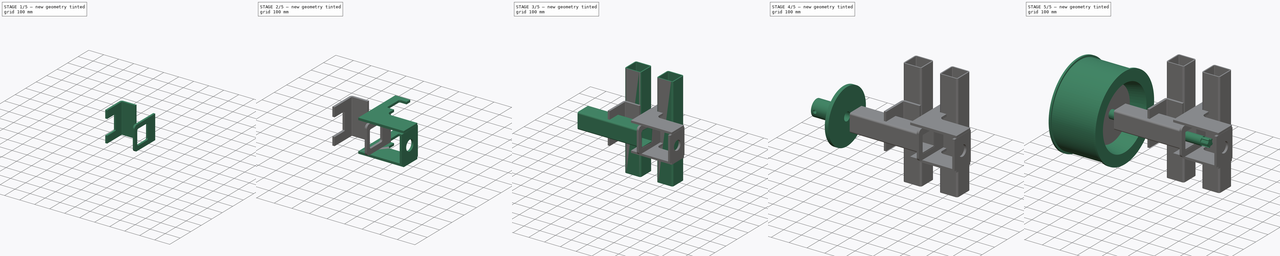
[diagram: build sequence overview — one tinted view per stage of 5, left to right]
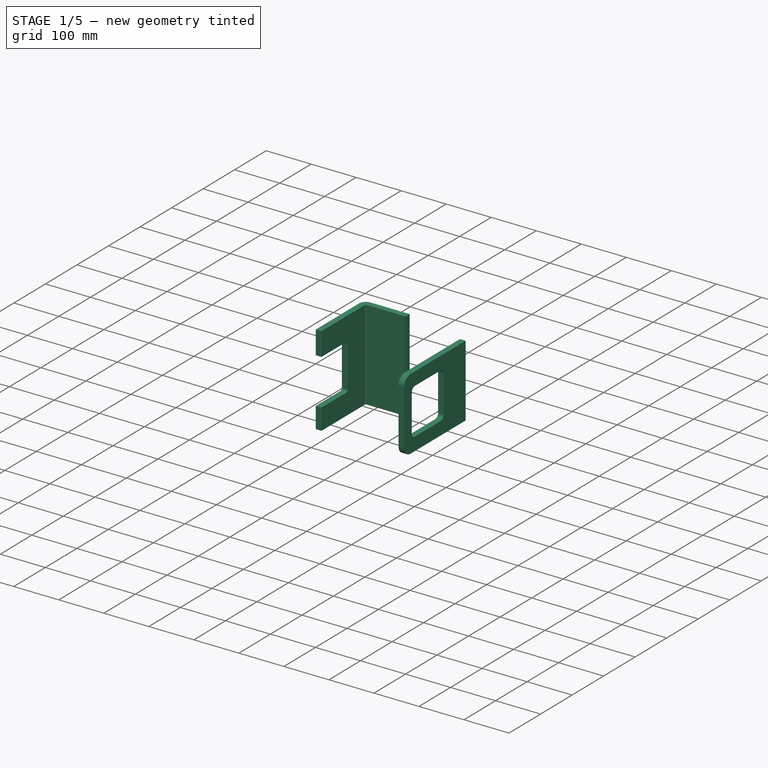
[diagram: stage 1 of 5 — iso view after this stage's code; geometry added in this stage tinted green]
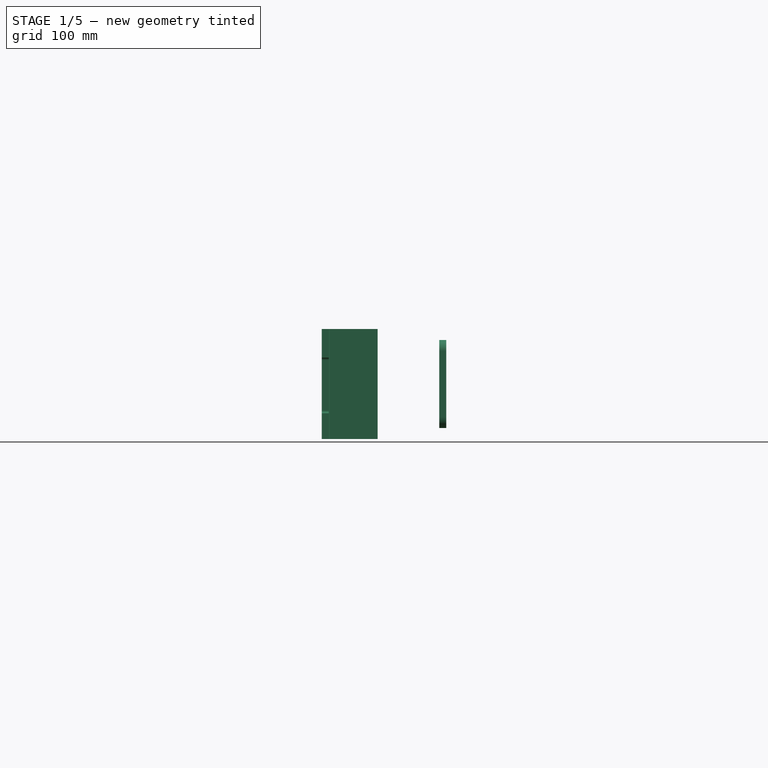
[diagram: stage 1 of 5 — front view after this stage's code; geometry added in this stage tinted green]
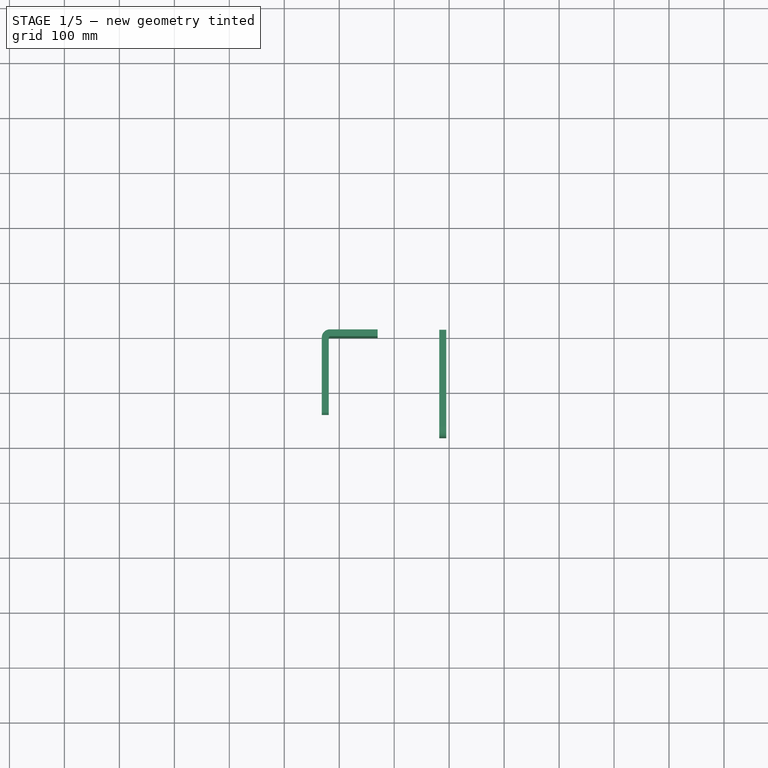
[diagram: stage 1 of 5 — top view after this stage's code; geometry added in this stage tinted green]
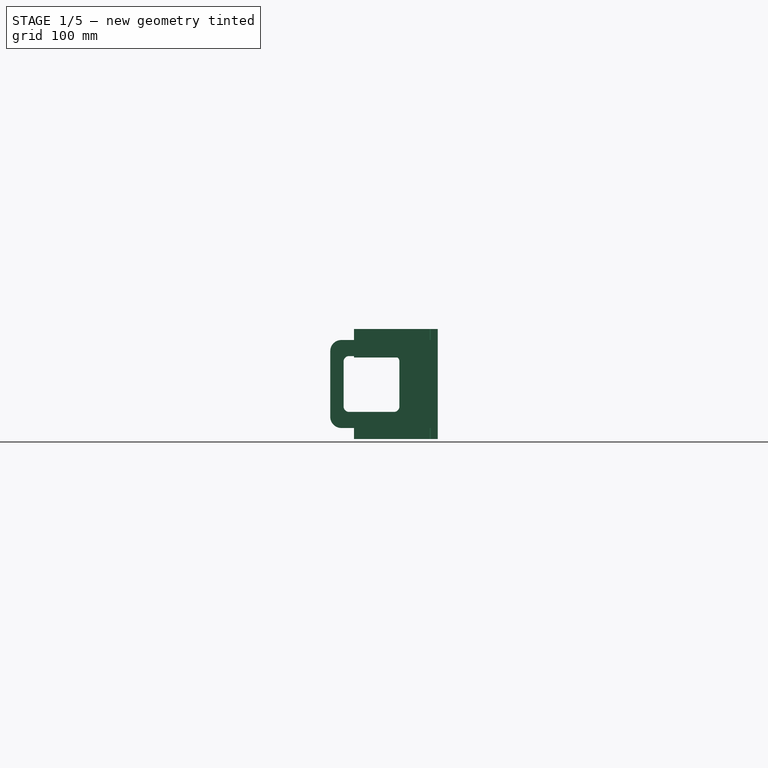
[diagram: stage 1 of 5 — right view after this stage's code; geometry added in this stage tinted green]
FCSTD DOCUMENT
Label: Wheelmodel_3
objects: Part::Feature×15, Sketcher::SketchObject×14, PartDesign::Pad×11, PartDesign::Revolution×2, Part::Cut×1, PartDesign::Pocket×1
note: 55 computed .brp shape members not serialized (recipe doc carries the construction recipe); baked Part::Feature solids carry a one-line shape summary decoded from their .brp

FEATURE [PartDesign::Pad] Pad013  label="Pad_Bracket"
  Length = 12.7
  MirroredExtent = false
  Sketch = -> Sketch009
FEATURE [Sketcher::SketchObject] Sketch013  label="Sketch_Bracket1"
  Placement = pos=(-731.8,-687,-85.94) rot=(0,0,1;0rad)
  sketch-geometry (10):
    g0: LineSegment StartX=15 StartY=0 StartZ=0 EndX=101.6 EndY=0 EndZ=0
    g1: LineSegment StartX=0 StartY=-152.4 StartZ=0 EndX=0 EndY=-15 EndZ=0
    g2: LineSegment [constr] StartX=0 StartY=0 StartZ=0 EndX=0 EndY=60 EndZ=0
    g3: LineSegment [constr] StartX=0 StartY=0 StartZ=0 EndX=60 EndY=0 EndZ=0
    g4: ArcOfCircle CenterX=15 CenterY=-15 CenterZ=0 NormalX=0 NormalY=0 NormalZ=1 Radius=15 StartAngle=1.5708 EndAngle=3.14159
    g5: LineSegment StartX=15 StartY=-12.7 StartZ=0 EndX=101.6 EndY=-12.7 EndZ=0
    g6: LineSegment StartX=12.7 StartY=-152.4 StartZ=0 EndX=12.7 EndY=-15 EndZ=0
    g7: ArcOfCircle CenterX=15 CenterY=-15 CenterZ=0 NormalX=0 NormalY=0 NormalZ=1 Radius=2.3 StartAngle=1.5708 EndAngle=3.14159
    g8: LineSegment StartX=101.6 StartY=0 StartZ=0 EndX=101.6 EndY=-12.7 EndZ=0
    g9: LineSegment StartX=0 StartY=-152.4 StartZ=0 EndX=12.7 EndY=-152.4 EndZ=0
  constraints (27):
    c: Horizontal(g0)
    c: Vertical(g2)
    c: DistanceX(g2) = 0
    c: DistanceY(g2) = 0
    c: Coincident(g3,g2)
    c: Horizontal(g3)
    c: DistanceX(g3) = 60
    c: Tangent(g0,g4)
    c: Tangent(g1,g4)
    c: Radius(g4) = 15
    c: Tangent(g5,g7)
    c: Tangent(g6,g7)
    c: Coincident(g7,g4)
    c: Vertical(g1)
    c: Coincident(g8,g0)
    c: Coincident(g8,g5)
    c: Vertical(g8)
    c: Coincident(g9,g1)
    c: Coincident(g9,g6)
    c: Horizontal(g9)
    c: Vertical(g6)
    c: DistanceX(g1) = 0
    c: Horizontal(g5)
    c: DistanceY(g0) = 0
    c: DistanceY(g1) = -152.4
    c: DistanceX(g9) = 12.7
    c: DistanceX(g0) = 101.6
FEATURE [PartDesign::Pad] Pad014  label="Pad_Bracket1"
  Length = 200
  MirroredExtent = false
  Sketch = -> Sketch013
FEATURE [Sketcher::SketchObject] Sketch014  label="Sketch_BracketCut"
  Placement = pos=(-731.8,0,0) rot=(0.57735,-0.57735,-0.57735;2.0944rad)
  Support = -> Pad014 [Face3]
  sketch-geometry (10):
    g0: LineSegment StartX=761.68 StartY=62.36 StartZ=0 EndX=853.28 EndY=62.36 EndZ=0
    g1: LineSegment StartX=858.28 StartY=57.36 StartZ=0 EndX=858.28 EndY=-34.24 EndZ=0
    g2: LineSegment StartX=853.28 StartY=-39.24 StartZ=0 EndX=761.68 EndY=-39.24 EndZ=0
    g3: LineSegment StartX=756.68 StartY=-34.24 StartZ=0 EndX=756.68 EndY=57.36 EndZ=0
    g4: LineSegment [constr] StartX=756.68 StartY=14.06 StartZ=0 EndX=858.28 EndY=14.06 EndZ=0
    g5: LineSegment [constr] StartX=807.48 StartY=62.36 StartZ=0 EndX=807.48 EndY=-39.24 EndZ=0
    g6: ArcOfCircle CenterX=761.68 CenterY=57.36 CenterZ=0 NormalX=0 NormalY=0 NormalZ=1 Radius=5 StartAngle=1.5708 EndAngle=3.14159
    g7: ArcOfCircle CenterX=853.28 CenterY=57.36 CenterZ=0 NormalX=0 NormalY=0 NormalZ=1 Radius=5 StartAngle=0 EndAngle=1.5708
    g8: ArcOfCircle CenterX=853.28 CenterY=-34.24 CenterZ=0 NormalX=0 NormalY=0 NormalZ=1 Radius=5 StartAngle=4.71239 EndAngle=6.28319
    g9: ArcOfCircle CenterX=761.68 CenterY=-34.24 CenterZ=0 NormalX=0 NormalY=0 NormalZ=1 Radius=5 StartAngle=3.14159 EndAngle=4.71239
  constraints (26):
    c: Horizontal(g2)
    c: Vertical(g1)
    c: Horizontal(g4)
    c: PointOnObject(g4,g3)
    c: PointOnObject(g4,g1)
    c: PointOnObject(g5,g0)
    c: PointOnObject(g5,g2)
    c: Vertical(g5)
    c: DistanceY(g4) = 14.06
    c: DistanceX(g5) = 807.48
    c: Tangent(g0,g6)
    c: Tangent(g3,g6)
    c: Tangent(g0,g7)
    c: Tangent(g1,g7)
    c: Tangent(g1,g8)
    c: Tangent(g2,g8)
    c: Tangent(g2,g9)
    c: Tangent(g3,g9)
    c: DistanceY(g2,g0) = 101.6
    c: Symmetric(g9,g0,g4)
    c: Vertical(g3)
    c: Horizontal(g0)
    c: Symmetric(g7,g6,g5)
    c: DistanceX(g4) = 101.6
    c: Radius(g6) = 5
    c: Equal(g8,g6)
FEATURE [PartDesign::Pocket] Pocket  label="Pocket_Bracket1"
  Length = 15
  Sketch = -> Sketch014
  Type = 0
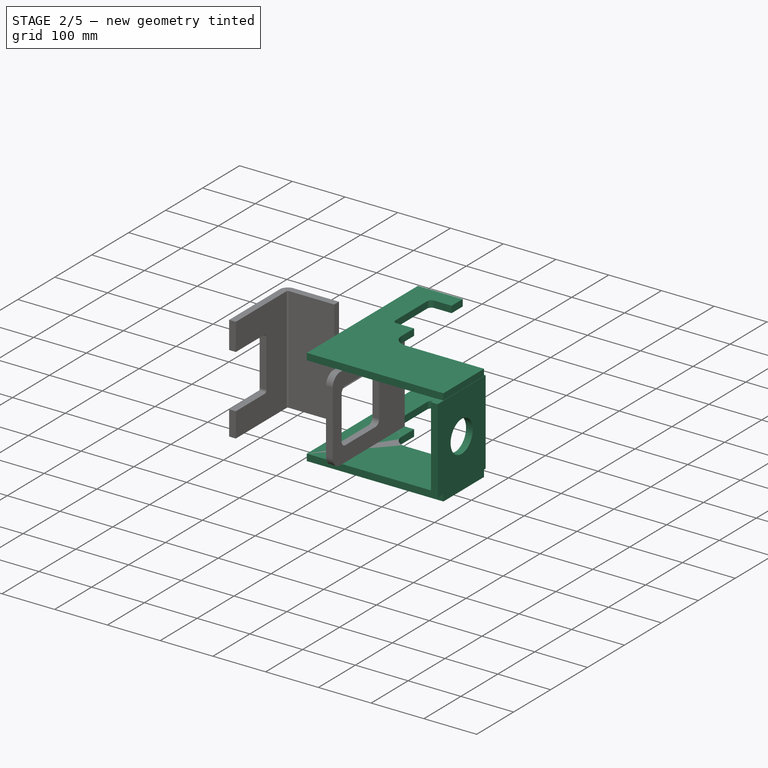
[diagram: stage 2 of 5 — iso view after this stage's code; geometry added in this stage tinted green]
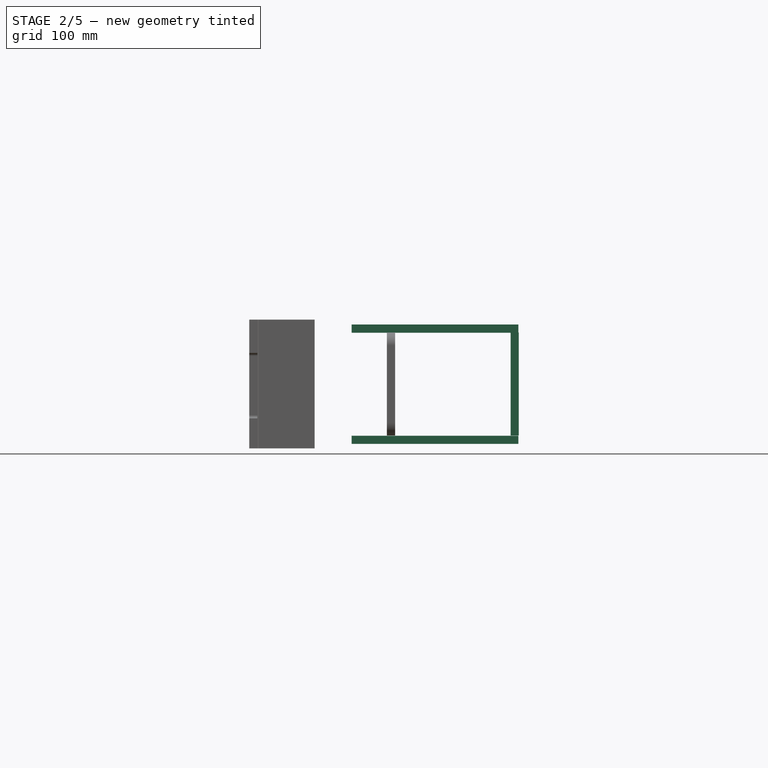
[diagram: stage 2 of 5 — front view after this stage's code; geometry added in this stage tinted green]
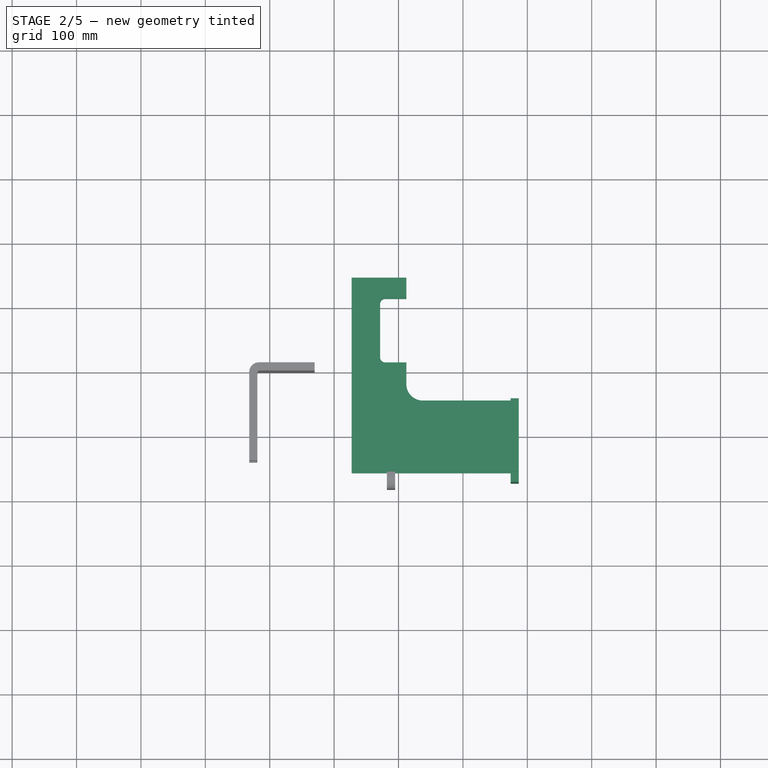
[diagram: stage 2 of 5 — top view after this stage's code; geometry added in this stage tinted green]
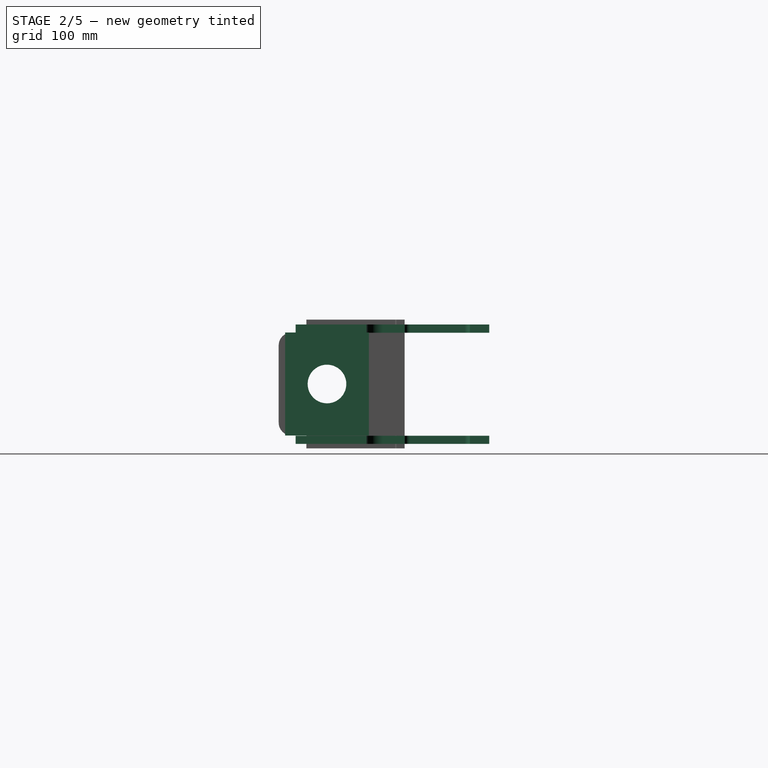
[diagram: stage 2 of 5 — right view after this stage's code; geometry added in this stage tinted green]
FEATURE [Sketcher::SketchObject] Sketch011  label="Sketch_FlangeMotor"
  Placement = pos=(-326,-807.48,14.06) rot=(0.57735,0.57735,0.57735;2.0944rad)
  sketch-geometry (7):
    g0: LineSegment [constr] StartX=0 StartY=0 StartZ=0 EndX=0 EndY=60 EndZ=0
    g1: LineSegment [constr] StartX=0 StartY=0 StartZ=0 EndX=60 EndY=0 EndZ=0
    g2: LineSegment StartX=-65 StartY=80 StartZ=0 EndX=65 EndY=80 EndZ=0
    g3: LineSegment StartX=65 StartY=80 StartZ=0 EndX=65 EndY=-80 EndZ=0
    g4: LineSegment StartX=65 StartY=-80 StartZ=0 EndX=-65 EndY=-80 EndZ=0
    g5: LineSegment StartX=-65 StartY=-80 StartZ=0 EndX=-65 EndY=80 EndZ=0
    g6: Circle CenterX=0 CenterY=0 CenterZ=0 NormalX=0 NormalY=0 NormalZ=1 Radius=30
  constraints (20):
    c: Vertical(g0)
    c: DistanceX(g0) = 0
    c: DistanceY(g0) = 0
    c: DistanceY(g0) = 60
    c: Coincident(g1,g0)
    c: Horizontal(g1)
    c: DistanceX(g1) = 60
    c: Coincident(g3,g4)
    c: Horizontal(g2)
    c: Horizontal(g4)
    c: Vertical(g3)
    c: DistanceX(g5) = -65
    c: DistanceY(g2,g4) = -160
    c: DistanceX(g3) = 65
    c: Coincident(g6,g0)
    c: Radius(g6) = 30
    c: Coincident(g5,g2)
    c: Coincident(g5,g4)
    c: Symmetric(g2,g4,g1)
    c: Coincident(g2,g3)
FEATURE [Part::Feature] ___Life_Trac_III___Wheel_connection_with_Mount018  label="BearingPlate1"
  Placement = pos=(-910,-883.681,90.2632) rot=(0.57735,0.57735,-0.57735;4.18879rad)
  shape: bbox 12.7 x 152.4 x 152.4 mm, 20 faces (baked)
FEATURE [PartDesign::Pad] Pad010  label="Pad_FlangeMotor"
  Length = 12.7
  MirroredExtent = false
  Sketch = -> Sketch011
FEATURE [Part::Feature] ___Life_Trac_III___Wheel_connection_with_Mount019  label="Motor"
  Placement = pos=(-64.8255,-756.681,64.8632) rot=(0.57735,-0.57735,0.57735;2.0944rad)
  shape: bbox 292.1 x 127 x 114.3 mm, 43 faces (baked)
FEATURE [Sketcher::SketchObject] Sketch012  label="Sketch_Hook"
  Placement = pos=(-477.8,-636.2,-79) rot=(0,0,1;0rad)
  sketch-geometry (15):
    g0: LineSegment StartX=-42.8 StartY=50.8 StartZ=0 EndX=-10 EndY=50.8 EndZ=0
    g1: LineSegment StartX=-50.8 StartY=-42.8 StartZ=0 EndX=-50.8 EndY=42.8 EndZ=0
    g2: LineSegment [constr] StartX=0 StartY=0 StartZ=0 EndX=0 EndY=60 EndZ=0
    g3: LineSegment [constr] StartX=0 StartY=0 StartZ=0 EndX=60 EndY=0 EndZ=0
    g4: ArcOfCircle CenterX=-42.8 CenterY=42.8 CenterZ=0 NormalX=0 NormalY=0 NormalZ=1 Radius=8 StartAngle=1.5708 EndAngle=3.14159
    g5: LineSegment StartX=15.4 StartY=-110 StartZ=0 EndX=164 EndY=-110 EndZ=0
    g6: LineSegment StartX=164 StartY=-110 StartZ=0 EndX=164 EndY=-220 EndZ=0
    g7: LineSegment StartX=164 StartY=-220 StartZ=0 EndX=-95 EndY=-220 EndZ=0
    g8: LineSegment StartX=-95 StartY=-220 StartZ=0 EndX=-95 EndY=80.8 EndZ=0
    g9: LineSegment StartX=-95 StartY=80.8 StartZ=0 EndX=-10 EndY=80.8 EndZ=0
    g10: LineSegment StartX=-10 StartY=80.8 StartZ=0 EndX=-10 EndY=50.8 EndZ=0
    g11: LineSegment StartX=-42.8 StartY=-50.8 StartZ=0 EndX=-10 EndY=-50.8 EndZ=0
    g12: LineSegment StartX=-10 StartY=-50.8 StartZ=0 EndX=-10 EndY=-84.6 EndZ=0
    g13: ArcOfCircle CenterX=-42.8 CenterY=-42.8 CenterZ=0 NormalX=0 NormalY=0 NormalZ=1 Radius=8 StartAngle=3.14159 EndAngle=4.71239
    g14: ArcOfCircle CenterX=15.4 CenterY=-84.6 CenterZ=0 NormalX=0 NormalY=0 NormalZ=1 Radius=25.4 StartAngle=3.14159 EndAngle=4.71239
  constraints (43):
    c: Horizontal(g0)
    c: Vertical(g2)
    c: DistanceX(g2) = 0
    c: DistanceY(g2) = 0
    c: DistanceY(g2) = 60
    c: Coincident(g3,g2)
    c: Horizontal(g3)
    c: DistanceX(g3) = 60
    c: Tangent(g0,g4)
    c: Tangent(g1,g4)
    c: Radius(g4) = 8
    c: DistanceX(g1) = -50.8
    c: Vertical(g1)
    c: DistanceX(g0) = -10
    c: DistanceY(g0) = 50.8
    c: Horizontal(g5)
    c: Coincident(g6,g5)
    c: Vertical(g6)
    c: Coincident(g6,g7)
    c: Horizontal(g7)
    c: Coincident(g7,g8)
    c: Vertical(g8)
    c: Coincident(g9,g8)
    c: Horizontal(g9)
    c: Coincident(g10,g9)
    c: Coincident(g10,g0)
    c: Vertical(g10)
    c: DistanceX(g9) = 85
    c: DistanceY(g6) = -110
    c: DistanceY(g7) = -220
    c: DistanceX(g5) = 164
    c: DistanceY(g10) = -30
    c: Horizontal(g11)
    c: Coincident(g11,g12)
    c: Vertical(g12)
    c: DistanceY(g0,g11) = -101.6
    c: Tangent(g1,g13)
    c: Tangent(g11,g13)
    c: Radius(g13) = 8
    c: DistanceX(g11,g0) = 0
    c: Tangent(g5,g14)
    c: Tangent(g12,g14)
    c: Radius(g14) = 25.4
FEATURE [PartDesign::Pad] Pad011  label="Pad_Hook1"
  Length = 12.7
  MirroredExtent = false
  Sketch = -> Sketch012
FEATURE [PartDesign::Pad] Pad012  label="Pad_Hook2"
  Length = 12.7
  MirroredExtent = false
  Placement = pos=(0,0,172.7) rot=(0,0,1;0rad)
  Sketch = -> Sketch012
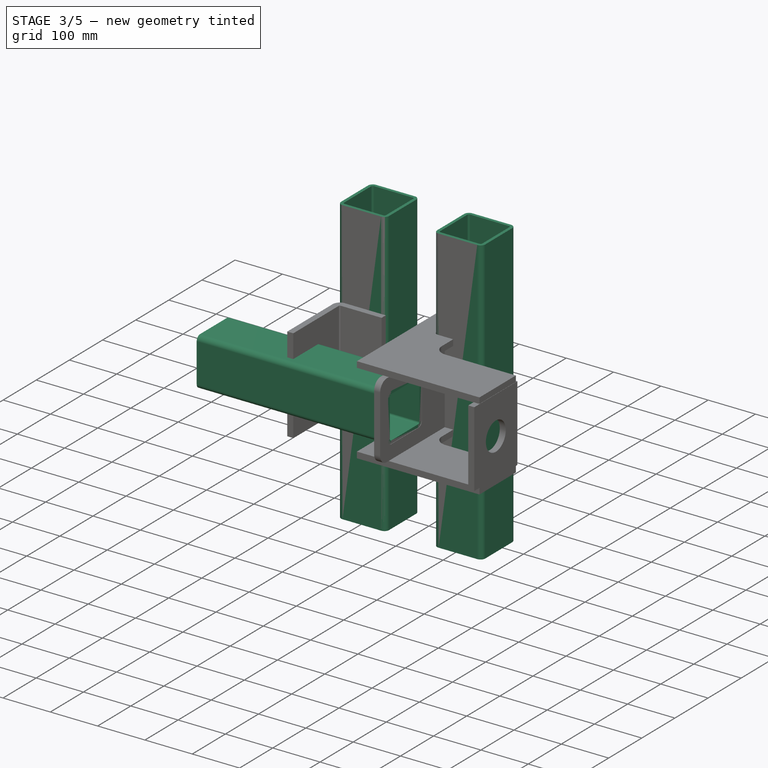
[diagram: stage 3 of 5 — iso view after this stage's code; geometry added in this stage tinted green]
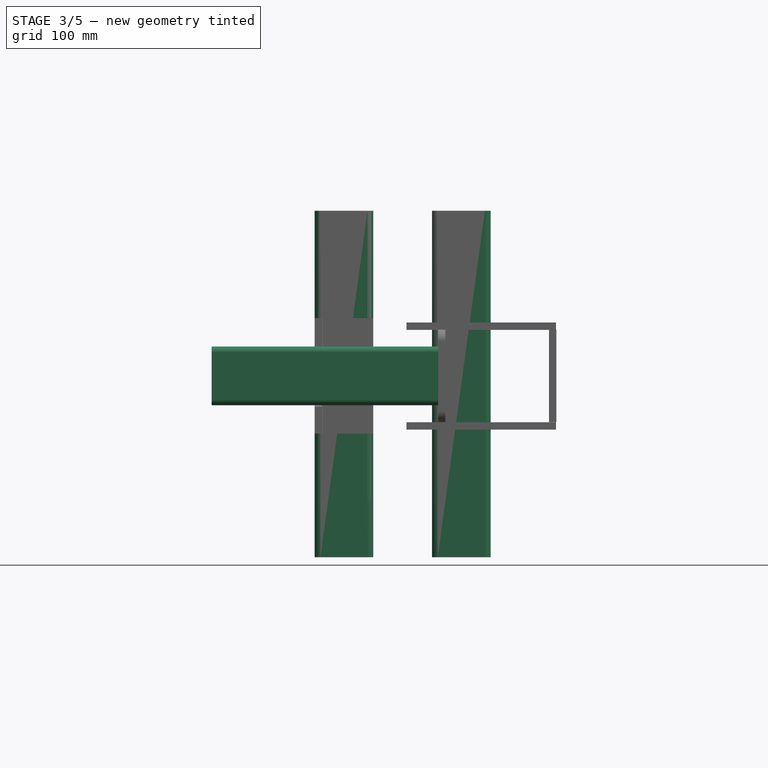
[diagram: stage 3 of 5 — front view after this stage's code; geometry added in this stage tinted green]
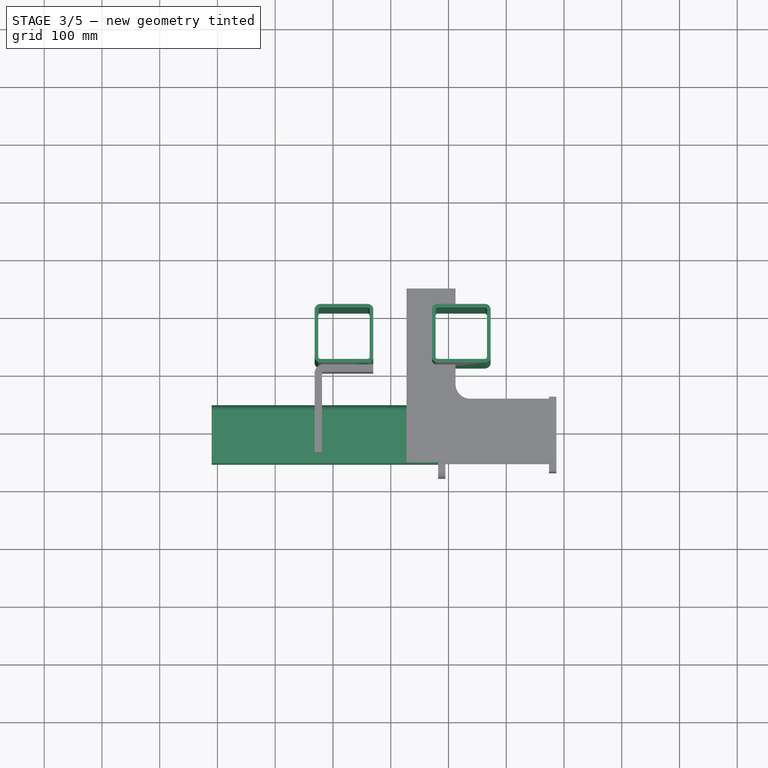
[diagram: stage 3 of 5 — top view after this stage's code; geometry added in this stage tinted green]
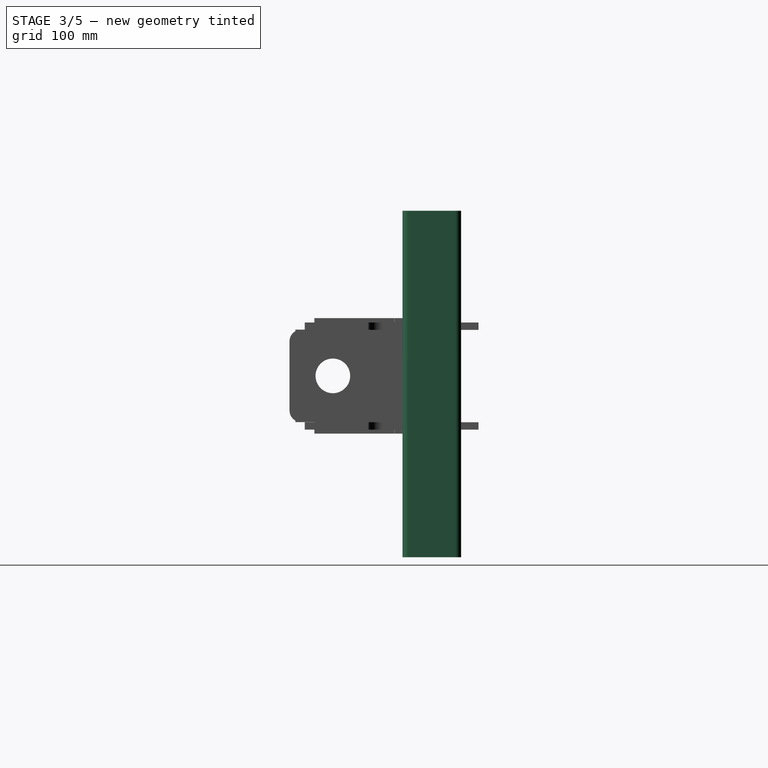
[diagram: stage 3 of 5 — right view after this stage's code; geometry added in this stage tinted green]
FEATURE [Sketcher::SketchObject] Sketch006  label="Sketch_Tube"
  Placement = pos=(-910,-807.48,14.06) rot=(0.57735,0.57735,0.57735;2.0944rad)
  sketch-geometry (18):
    g0: LineSegment StartX=-40.8 StartY=50.8 StartZ=0 EndX=40.8 EndY=50.8 EndZ=0
    g1: LineSegment StartX=50.8 StartY=40.8 StartZ=0 EndX=50.8 EndY=-40.8 EndZ=0
    g2: LineSegment StartX=40.8 StartY=-50.8 StartZ=0 EndX=-40.8 EndY=-50.8 EndZ=0
    g3: LineSegment StartX=-50.8 StartY=-40.8 StartZ=0 EndX=-50.8 EndY=40.8 EndZ=0
    g4: LineSegment [constr] StartX=0 StartY=0 StartZ=0 EndX=0 EndY=60 EndZ=0
    g5: LineSegment [constr] StartX=0 StartY=0 StartZ=0 EndX=60 EndY=0 EndZ=0
    g6: ArcOfCircle CenterX=-40.8 CenterY=40.8 CenterZ=0 NormalX=0 NormalY=0 NormalZ=1 Radius=10 StartAngle=1.5708 EndAngle=3.14159
    g7: ArcOfCircle CenterX=40.8 CenterY=40.8 CenterZ=0 NormalX=0 NormalY=0 NormalZ=1 Radius=10 StartAngle=0 EndAngle=1.5708
    g8: ArcOfCircle CenterX=-40.8 CenterY=-40.8 CenterZ=0 NormalX=0 NormalY=0 NormalZ=1 Radius=10 StartAngle=3.14159 EndAngle=4.71239
    g9: ArcOfCircle CenterX=40.8 CenterY=-40.8 CenterZ=0 NormalX=0 NormalY=0 NormalZ=1 Radius=10 StartAngle=4.71239 EndAngle=6.28319
    g10: LineSegment StartX=-40.8 StartY=44.45 StartZ=0 EndX=40.8 EndY=44.45 EndZ=0
    g11: LineSegment StartX=44.45 StartY=40.8 StartZ=0 EndX=44.45 EndY=-40.8 EndZ=0
    g12: LineSegment StartX=40.8 StartY=-44.45 StartZ=0 EndX=-40.8 EndY=-44.45 EndZ=0
    g13: LineSegment StartX=-44.45 StartY=-40.8 StartZ=0 EndX=-44.45 EndY=40.8 EndZ=0
    g14: ArcOfCircle CenterX=-40.8 CenterY=40.8 CenterZ=0 NormalX=0 NormalY=0 NormalZ=1 Radius=3.65 StartAngle=1.5708 EndAngle=3.14159
    g15: ArcOfCircle CenterX=40.8 CenterY=40.8 CenterZ=0 NormalX=0 NormalY=0 NormalZ=1 Radius=3.65 StartAngle=0 EndAngle=1.5708
    g16: ArcOfCircle CenterX=-40.8 CenterY=-40.8 CenterZ=0 NormalX=0 NormalY=0 NormalZ=1 Radius=3.65 StartAngle=3.14159 EndAngle=4.71239
    g17: ArcOfCircle CenterX=40.8 CenterY=-40.8 CenterZ=0 NormalX=0 NormalY=0 NormalZ=1 Radius=3.65 StartAngle=4.71239 EndAngle=6.28319
  constraints (41):
    c: Horizontal(g0)
    c: Vertical(g1)
    c: Vertical(g4)
    c: DistanceX(g4) = 0
    c: DistanceY(g4) = 0
    c: DistanceY(g4) = 60
    c: Coincident(g5,g4)
    c: Horizontal(g5)
    c: DistanceX(g5) = 60
    c: Tangent(g0,g6)
    c: Tangent(g3,g6)
    c: Tangent(g0,g7)
    c: Tangent(g1,g7)
    c: Tangent(g2,g8)
    c: Tangent(g3,g8)
    c: Tangent(g1,g9)
    c: Tangent(g2,g9)
    c: Equal(g8,g9)
    c: Equal(g9,g7)
    c: Equal(g7,g6)
    c: Radius(g6) = 10
    c: Symmetric(g6,g8,g5)
    c: Symmetric(g9,g8,g4)
    c: DistanceY(g0,g2) = -101.6
    c: DistanceX(g3,g1) = 101.6
    c: Tangent(g10,g14)
    c: Tangent(g13,g14)
    c: Tangent(g10,g15)
    c: Tangent(g11,g15)
    c: Tangent(g12,g16)
    c: Tangent(g13,g16)
    c: Tangent(g11,g17)
    c: Tangent(g12,g17)
    c: Equal(g14,g15)
    c: Equal(g15,g17)
    c: Equal(g17,g16)
    c: Coincident(g14,g6)
    c: Coincident(g15,g7)
    c: Coincident(g17,g9)
    c: Coincident(g16,g8)
    c: DistanceX(g3,g13) = 6.35
FEATURE [PartDesign::Pad] Pad003  label="Pad_Tube"
  Length = 404
  MirroredExtent = false
  Sketch = -> Sketch006
FEATURE [Sketcher::SketchObject] Sketch007  label="Sketch_FrameTube1"
  Placement = pos=(-681,-636.2,-300) rot=(0,0,1;0rad)
  sketch-geometry (18):
    g0: LineSegment StartX=-40.8 StartY=50.8 StartZ=0 EndX=40.8 EndY=50.8 EndZ=0
    g1: LineSegment StartX=50.8 StartY=40.8 StartZ=0 EndX=50.8 EndY=-40.8 EndZ=0
    g2: LineSegment StartX=40.8 StartY=-50.8 StartZ=0 EndX=-40.8 EndY=-50.8 EndZ=0
    g3: LineSegment StartX=-50.8 StartY=-40.8 StartZ=0 EndX=-50.8 EndY=40.8 EndZ=0
    g4: LineSegment [constr] StartX=0 StartY=0 StartZ=0 EndX=0 EndY=60 EndZ=0
    g5: LineSegment [constr] StartX=0 StartY=0 StartZ=0 EndX=60 EndY=0 EndZ=0
    g6: ArcOfCircle CenterX=-40.8 CenterY=40.8 CenterZ=0 NormalX=0 NormalY=0 NormalZ=1 Radius=10 StartAngle=1.5708 EndAngle=3.14159
    g7: ArcOfCircle CenterX=40.8 CenterY=40.8 CenterZ=0 NormalX=0 NormalY=0 NormalZ=1 Radius=10 StartAngle=0 EndAngle=1.5708
    g8: ArcOfCircle CenterX=-40.8 CenterY=-40.8 CenterZ=0 NormalX=0 NormalY=0 NormalZ=1 Radius=10 StartAngle=3.14159 EndAngle=4.71239
    g9: ArcOfCircle CenterX=40.8 CenterY=-40.8 CenterZ=0 NormalX=0 NormalY=0 NormalZ=1 Radius=10 StartAngle=4.71239 EndAngle=6.28319
    g10: LineSegment StartX=-40.8 StartY=44.45 StartZ=0 EndX=40.8 EndY=44.45 EndZ=0
    g11: LineSegment StartX=44.45 StartY=40.8 StartZ=0 EndX=44.45 EndY=-40.8 EndZ=0
    g12: LineSegment StartX=40.8 StartY=-44.45 StartZ=0 EndX=-40.8 EndY=-44.45 EndZ=0
    g13: LineSegment StartX=-44.45 StartY=-40.8 StartZ=0 EndX=-44.45 EndY=40.8 EndZ=0
    g14: ArcOfCircle CenterX=-40.8 CenterY=40.8 CenterZ=0 NormalX=0 NormalY=0 NormalZ=1 Radius=3.65 StartAngle=1.5708 EndAngle=3.14159
    g15: ArcOfCircle CenterX=40.8 CenterY=40.8 CenterZ=0 NormalX=0 NormalY=0 NormalZ=1 Radius=3.65 StartAngle=0 EndAngle=1.5708
    g16: ArcOfCircle CenterX=-40.8 CenterY=-40.8 CenterZ=0 NormalX=0 NormalY=0 NormalZ=1 Radius=3.65 StartAngle=3.14159 EndAngle=4.71239
    g17: ArcOfCircle CenterX=40.8 CenterY=-40.8 CenterZ=0 NormalX=0 NormalY=0 NormalZ=1 Radius=3.65 StartAngle=4.71239 EndAngle=6.28319
  constraints (41):
    c: Horizontal(g0)
    c: Vertical(g1)
    c: Vertical(g4)
    c: DistanceX(g4) = 0
    c: DistanceY(g4) = 0
    c: DistanceY(g4) = 60
    c: Coincident(g5,g4)
    c: Horizontal(g5)
    c: DistanceX(g5) = 60
    c: Tangent(g0,g6)
    c: Tangent(g3,g6)
    c: Tangent(g0,g7)
    c: Tangent(g1,g7)
    c: Tangent(g2,g8)
    c: Tangent(g3,g8)
    c: Tangent(g1,g9)
    c: Tangent(g2,g9)
    c: Equal(g8,g9)
    c: Equal(g9,g7)
    c: Equal(g7,g6)
    c: Radius(g6) = 10
    c: Symmetric(g6,g8,g5)
    c: Symmetric(g9,g8,g4)
    c: DistanceY(g0,g2) = -101.6
    c: DistanceX(g3,g1) = 101.6
    c: Tangent(g10,g14)
    c: Tangent(g13,g14)
    c: Tangent(g10,g15)
    c: Tangent(g11,g15)
    c: Tangent(g12,g16)
    c: Tangent(g13,g16)
    c: Tangent(g11,g17)
    c: Tangent(g12,g17)
    c: Equal(g14,g15)
    c: Equal(g15,g17)
    c: Equal(g17,g16)
    c: Coincident(g14,g6)
    c: Coincident(g15,g7)
    c: Coincident(g17,g9)
    c: Coincident(g16,g8)
    c: DistanceX(g3,g13) = 6.35
FEATURE [Sketcher::SketchObject] Sketch008  label="Sketch_FrameTube2"
  Placement = pos=(-477.8,-636.2,-300) rot=(0,0,1;0rad)
  sketch-geometry (18):
    g0: LineSegment StartX=-40.8 StartY=50.8 StartZ=0 EndX=40.8 EndY=50.8 EndZ=0
    g1: LineSegment StartX=50.8 StartY=40.8 StartZ=0 EndX=50.8 EndY=-40.8 EndZ=0
    g2: LineSegment StartX=40.8 StartY=-50.8 StartZ=0 EndX=-40.8 EndY=-50.8 EndZ=0
    g3: LineSegment StartX=-50.8 StartY=-40.8 StartZ=0 EndX=-50.8 EndY=40.8 EndZ=0
    g4: LineSegment [constr] StartX=0 StartY=0 StartZ=0 EndX=0 EndY=60 EndZ=0
    g5: LineSegment [constr] StartX=0 StartY=0 StartZ=0 EndX=60 EndY=0 EndZ=0
    g6: ArcOfCircle CenterX=-40.8 CenterY=40.8 CenterZ=0 NormalX=0 NormalY=0 NormalZ=1 Radius=10 StartAngle=1.5708 EndAngle=3.14159
    g7: ArcOfCircle CenterX=40.8 CenterY=40.8 CenterZ=0 NormalX=0 NormalY=0 NormalZ=1 Radius=10 StartAngle=0 EndAngle=1.5708
    g8: ArcOfCircle CenterX=-40.8 CenterY=-40.8 CenterZ=0 NormalX=0 NormalY=0 NormalZ=1 Radius=10 StartAngle=3.14159 EndAngle=4.71239
    g9: ArcOfCircle CenterX=40.8 CenterY=-40.8 CenterZ=0 NormalX=0 NormalY=0 NormalZ=1 Radius=10 StartAngle=4.71239 EndAngle=6.28319
    g10: LineSegment StartX=-40.8 StartY=44.45 StartZ=0 EndX=40.8 EndY=44.45 EndZ=0
    g11: LineSegment StartX=44.45 StartY=40.8 StartZ=0 EndX=44.45 EndY=-40.8 EndZ=0
    g12: LineSegment StartX=40.8 StartY=-44.45 StartZ=0 EndX=-40.8 EndY=-44.45 EndZ=0
    g13: LineSegment StartX=-44.45 StartY=-40.8 StartZ=0 EndX=-44.45 EndY=40.8 EndZ=0
    g14: ArcOfCircle CenterX=-40.8 CenterY=40.8 CenterZ=0 NormalX=0 NormalY=0 NormalZ=1 Radius=3.65 StartAngle=1.5708 EndAngle=3.14159
    g15: ArcOfCircle CenterX=40.8 CenterY=40.8 CenterZ=0 NormalX=0 NormalY=0 NormalZ=1 Radius=3.65 StartAngle=0 EndAngle=1.5708
    g16: ArcOfCircle CenterX=-40.8 CenterY=-40.8 CenterZ=0 NormalX=0 NormalY=0 NormalZ=1 Radius=3.65 StartAngle=3.14159 EndAngle=4.71239
    g17: ArcOfCircle CenterX=40.8 CenterY=-40.8 CenterZ=0 NormalX=0 NormalY=0 NormalZ=1 Radius=3.65 StartAngle=4.71239 EndAngle=6.28319
  constraints (41):
    c: Horizontal(g0)
    c: Vertical(g1)
    c: Vertical(g4)
    c: DistanceX(g4) = 0
    c: DistanceY(g4) = 0
    c: DistanceY(g4) = 60
    c: Coincident(g5,g4)
    c: Horizontal(g5)
    c: DistanceX(g5) = 60
    c: Tangent(g0,g6)
    c: Tangent(g3,g6)
    c: Tangent(g0,g7)
    c: Tangent(g1,g7)
    c: Tangent(g2,g8)
    c: Tangent(g3,g8)
    c: Tangent(g1,g9)
    c: Tangent(g2,g9)
    c: Equal(g8,g9)
    c: Equal(g9,g7)
    c: Equal(g7,g6)
    c: Radius(g6) = 10
    c: Symmetric(g6,g8,g5)
    c: Symmetric(g9,g8,g4)
    c: DistanceY(g0,g2) = -101.6
    c: DistanceX(g3,g1) = 101.6
    c: Tangent(g10,g14)
    c: Tangent(g13,g14)
    c: Tangent(g10,g15)
    c: Tangent(g11,g15)
    c: Tangent(g12,g16)
    c: Tangent(g13,g16)
    c: Tangent(g11,g17)
    c: Tangent(g12,g17)
    c: Equal(g14,g15)
    c: Equal(g15,g17)
    c: Equal(g17,g16)
    c: Coincident(g14,g6)
    c: Coincident(g15,g7)
    c: Coincident(g17,g9)
    c: Coincident(g16,g8)
    c: DistanceX(g3,g13) = 6.35
FEATURE [PartDesign::Pad] Pad004  label="Pad_FrameTube1"
  Length = 600
  MirroredExtent = false
  Sketch = -> Sketch007
FEATURE [Sketcher::SketchObject] Sketch009  label="Sketch_Bracket"
  Placement = pos=(-518,-807.48,14.06) rot=(0.57735,0.57735,0.57735;2.0944rad)
  sketch-geometry (16):
    g0: LineSegment StartX=-40.8 StartY=50.8 StartZ=0 EndX=40.8 EndY=50.8 EndZ=0
    g1: LineSegment StartX=50.8 StartY=40.8 StartZ=0 EndX=50.8 EndY=-40.8 EndZ=0
    g2: LineSegment StartX=40.8 StartY=-50.8 StartZ=0 EndX=-40.8 EndY=-50.8 EndZ=0
    g3: LineSegment StartX=-50.8 StartY=-40.8 StartZ=0 EndX=-50.8 EndY=40.8 EndZ=0
    g4: LineSegment [constr] StartX=0 StartY=0 StartZ=0 EndX=0 EndY=60 EndZ=0
    g5: LineSegment [constr] StartX=0 StartY=0 StartZ=0 EndX=60 EndY=0 EndZ=0
    g6: ArcOfCircle CenterX=-40.8 CenterY=40.8 CenterZ=0 NormalX=0 NormalY=0 NormalZ=1 Radius=10 StartAngle=1.5708 EndAngle=3.14159
    g7: ArcOfCircle CenterX=40.8 CenterY=40.8 CenterZ=0 NormalX=0 NormalY=0 NormalZ=1 Radius=10 StartAngle=0 EndAngle=1.5708
    g8: ArcOfCircle CenterX=-40.8 CenterY=-40.8 CenterZ=0 NormalX=0 NormalY=0 NormalZ=1 Radius=10 StartAngle=3.14159 EndAngle=4.71239
    g9: ArcOfCircle CenterX=40.8 CenterY=-40.8 CenterZ=0 NormalX=0 NormalY=0 NormalZ=1 Radius=10 StartAngle=4.71239 EndAngle=6.28319
    g10: LineSegment StartX=-55 StartY=80 StartZ=0 EndX=120 EndY=80 EndZ=0
    g11: LineSegment StartX=120 StartY=80 StartZ=0 EndX=120 EndY=-80 EndZ=0
    g12: LineSegment StartX=120 StartY=-80 StartZ=0 EndX=-55 EndY=-80 EndZ=0
    g13: LineSegment StartX=-75 StartY=-60 StartZ=0 EndX=-75 EndY=60 EndZ=0
    g14: ArcOfCircle CenterX=-55 CenterY=60 CenterZ=0 NormalX=0 NormalY=0 NormalZ=1 Radius=20 StartAngle=1.5708 EndAngle=3.14159
    g15: ArcOfCircle CenterX=-55 CenterY=-60 CenterZ=0 NormalX=0 NormalY=0 NormalZ=1 Radius=20 StartAngle=3.14159 EndAngle=4.71239
  constraints (40):
    c: Horizontal(g0)
    c: Vertical(g1)
    c: Vertical(g4)
    c: DistanceX(g4) = 0
    c: DistanceY(g4) = 0
    c: DistanceY(g4) = 60
    c: Coincident(g5,g4)
    c: Horizontal(g5)
    c: DistanceX(g5) = 60
    c: Tangent(g0,g6)
    c: Tangent(g3,g6)
    c: Tangent(g0,g7)
    c: Tangent(g1,g7)
    c: Tangent(g2,g8)
    c: Tangent(g3,g8)
    c: Tangent(g1,g9)
    c: Tangent(g2,g9)
    c: Equal(g8,g9)
    c: Equal(g9,g7)
    c: Equal(g7,g6)
    c: Radius(g6) = 10
    c: Symmetric(g6,g8,g5)
    c: Symmetric(g9,g8,g4)
    c: DistanceY(g0,g2) = -101.6
    c: DistanceX(g3,g1) = 101.6
    c: Coincident(g11,g12)
    c: Horizontal(g10)
    c: Horizontal(g12)
    c: Vertical(g11)
    c: Tangent(g10,g14)
    c: Tangent(g13,g14)
    c: Tangent(g12,g15)
    c: Tangent(g13,g15)
    c: Symmetric(g14,g15,g5)
    c: Vertical(g13)
    c: DistanceX(g13) = -75
    c: Radius(g14) = 20
    c: DistanceY(g10,g12) = -160
    c: DistanceX(g11) = 120
    c: Coincident(g11,g10)
FEATURE [Sketcher::SketchObject] Sketch010  label="Sketch_Angle"
  Placement = pos=(-731,-807.48,14.06) rot=(0.57735,0.57735,0.57735;2.0944rad)
  sketch-geometry (8):
    g0: LineSegment [constr] StartX=0 StartY=0 StartZ=0 EndX=0 EndY=60 EndZ=0
    g1: LineSegment [constr] StartX=0 StartY=0 StartZ=0 EndX=60 EndY=0 EndZ=0
    g2: LineSegment StartX=120 StartY=101.6 StartZ=0 EndX=120 EndY=0 EndZ=0
    g3: LineSegment StartX=120 StartY=0 StartZ=0 EndX=107.3 EndY=0 EndZ=0
    g4: LineSegment StartX=107.3 StartY=88.9 StartZ=0 EndX=107.3 EndY=0 EndZ=0
    g5: LineSegment StartX=120 StartY=101.6 StartZ=0 EndX=-32.4 EndY=101.6 EndZ=0
    g6: LineSegment StartX=-32.4 StartY=101.6 StartZ=0 EndX=-32.4 EndY=88.9 EndZ=0
    g7: LineSegment StartX=-32.4 StartY=88.9 StartZ=0 EndX=107.3 EndY=88.9 EndZ=0
  constraints (25):
    c: Vertical(g0)
    c: DistanceX(g0) = 0
    c: DistanceY(g0) = 0
    c: DistanceY(g0) = 60
    c: Coincident(g1,g0)
    c: Horizontal(g1)
    c: DistanceX(g1) = 60
    c: Coincident(g2,g3)
    c: Horizontal(g3)
    c: DistanceX(g2) = 120
    c: Coincident(g3,g4)
    c: Vertical(g2)
    c: DistanceY(g2) = -101.6
    c: Coincident(g5,g2)
    c: Horizontal(g5)
    c: Coincident(g6,g5)
    c: Vertical(g6)
    c: Coincident(g7,g6)
    c: Coincident(g7,g4)
    c: Horizontal(g7)
    c: DistanceY(g6) = -12.7
    c: DistanceX(g3) = -12.7
    c: DistanceX(g5) = -152.4
    c: Vertical(g4)
    c: DistanceY(g3) = 0
FEATURE [PartDesign::Pad] Pad008  label="Pad_FrameTube2"
  Length = 600
  MirroredExtent = false
  Sketch = -> Sketch008
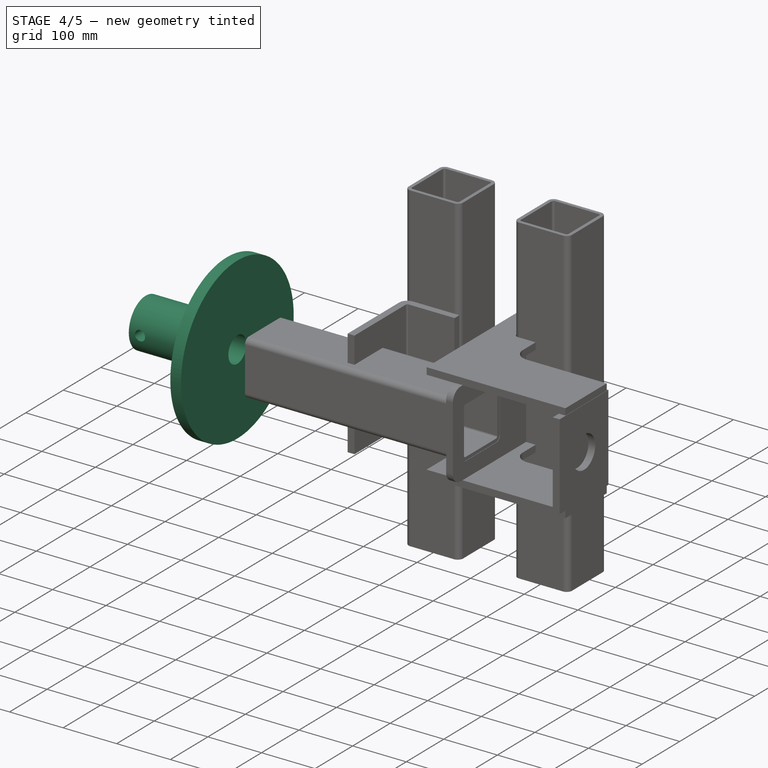
[diagram: stage 4 of 5 — iso view after this stage's code; geometry added in this stage tinted green]
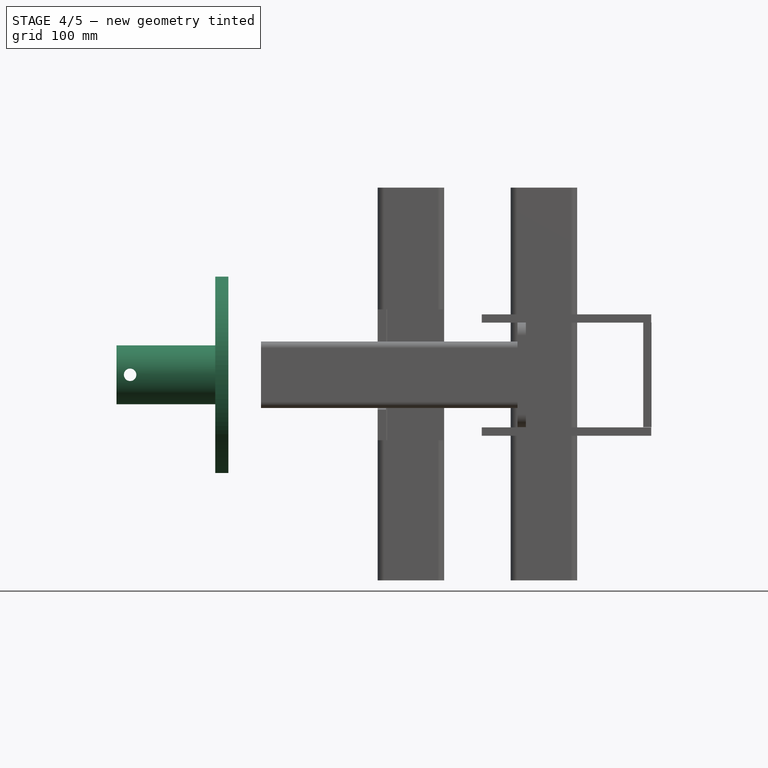
[diagram: stage 4 of 5 — front view after this stage's code; geometry added in this stage tinted green]
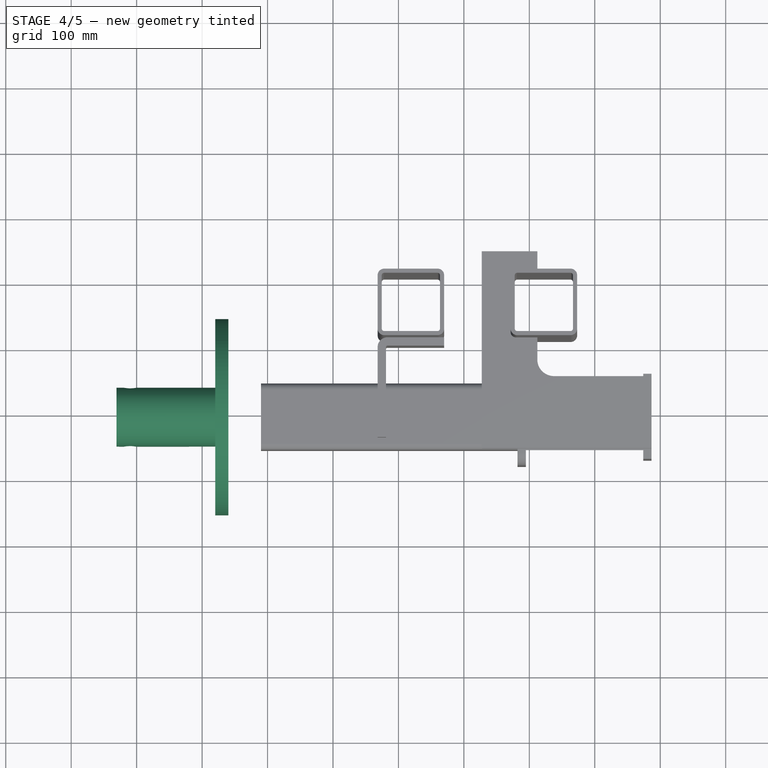
[diagram: stage 4 of 5 — top view after this stage's code; geometry added in this stage tinted green]
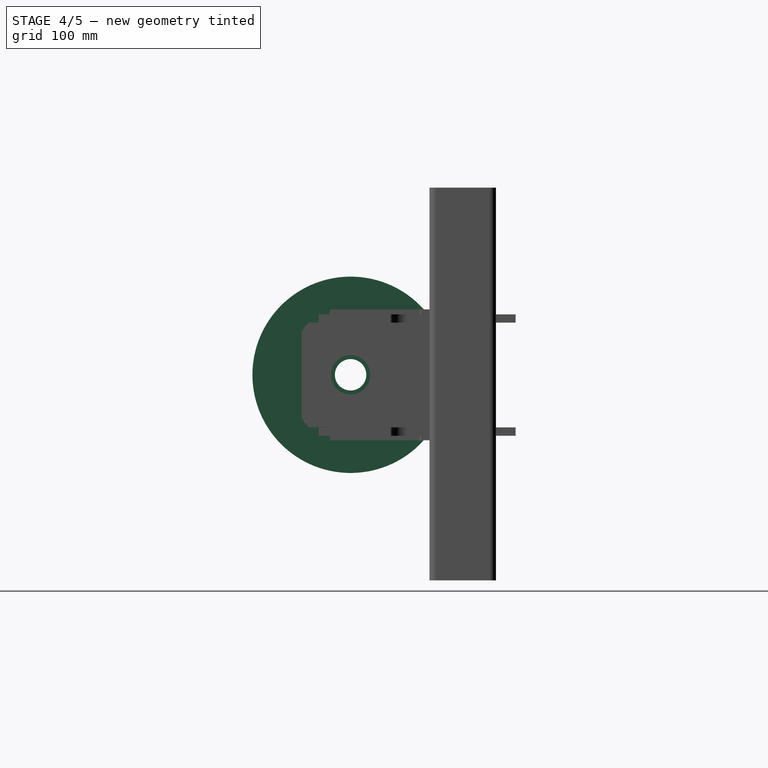
[diagram: stage 4 of 5 — right view after this stage's code; geometry added in this stage tinted green]
FEATURE [PartDesign::Revolution] Revolution001  label="Revolution_Hub"
  Angle = 360
  Axis = (1,0,0)
  Base = (0,-807.48,14.06)
  Sketch = -> Sketch001
FEATURE [Sketcher::SketchObject] Sketch005  label="Sketch_Pin"
  Placement = pos=(-1110,-755,14.06) rot=(1,0,0;1.5708rad)
  sketch-geometry (1):
    g0: Circle CenterX=0 CenterY=0 CenterZ=0 NormalX=0 NormalY=0 NormalZ=1 Radius=9.5
  constraints (3):
    c: DistanceX(g0) = 0
    c: DistanceY(g0) = 0
    c: Radius(g0) = 9.5
FEATURE [PartDesign::Pad] Pad002  label="Pad_Pin"
  Length = 105
  MirroredExtent = false
  Sketch = -> Sketch005
FEATURE [Part::Cut] Cut  label="Cut_Hub"
  Base = -> Revolution001
  Tool = -> Pad002
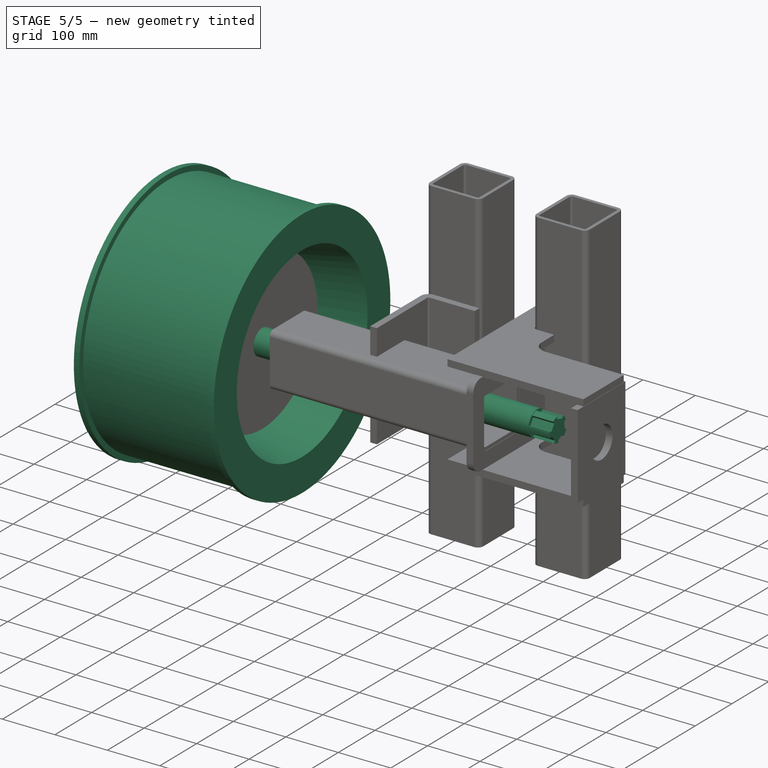
[diagram: stage 5 of 5 — iso view after this stage's code; geometry added in this stage tinted green]
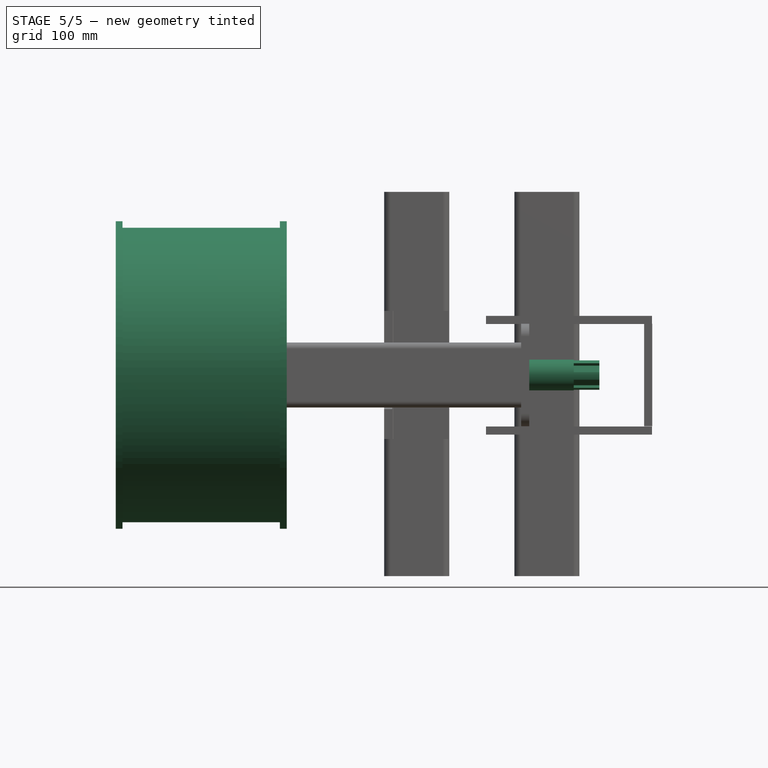
[diagram: stage 5 of 5 — front view after this stage's code; geometry added in this stage tinted green]
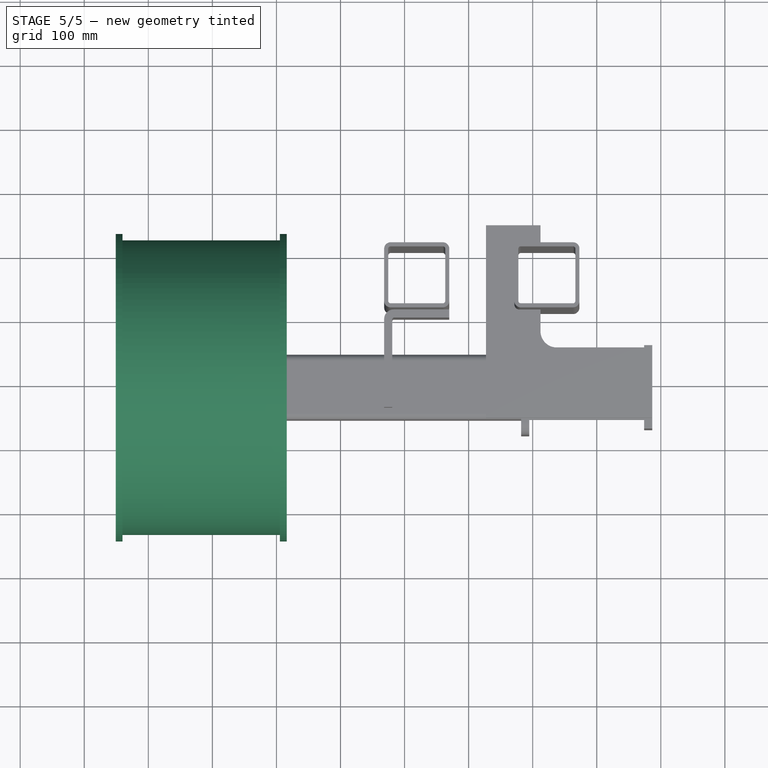
[diagram: stage 5 of 5 — top view after this stage's code; geometry added in this stage tinted green]
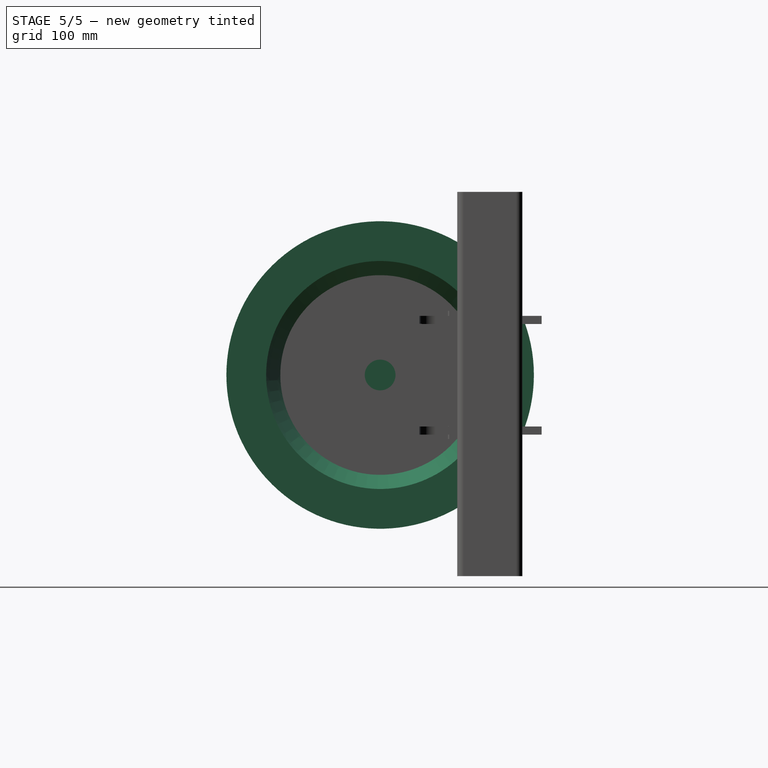
[diagram: stage 5 of 5 — right view after this stage's code; geometry added in this stage tinted green]
FEATURE [Part::Feature] ___Life_Trac_III___Wheel_connection_with_Mount
  Placement = pos=(-1140.83,-807.481,14.0632) rot=(1,0,0;0.72242rad)
  shape: bbox 266.6 x 475.2 x 475.2 mm, 95 faces (baked)
FEATURE [Part::Feature] ___Life_Trac_III___Wheel_connection_with_Mount001
  Placement = pos=(-979.225,-807.481,14.0632) rot=(-0.55837,-0.55837,-0.613551;2.04094rad)
  shape: bbox 12.7 x 304.8 x 304.8 mm, 16 faces (baked)
FEATURE [Part::Feature] ___Life_Trac_III___Wheel_connection_with_Mount003
  Placement = pos=(-1055.43,-785.448,39.5307) rot=(0,0.999349,0.036077;3.14159rad)
  shape: bbox 660.4 x 48.87 x 47.63 mm, 26 faces (baked)
FEATURE [Part::Feature] ___Life_Trac_III___Wheel_connection_with_Mount005  label="Bearing1"
  Placement = pos=(-910,-883.681,90.2632) rot=(0.57735,0.57735,-0.57735;4.18879rad)
  shape: bbox 34.93 x 114.3 x 114.3 mm, 9 faces (baked)
FEATURE [Part::Feature] ___Life_Trac_III___Wheel_connection_with_Mount007
  Placement = pos=(-414.075,-540.781,14.0632) rot=(-0.791069,0.432556,0.432556;1.80305rad)
  shape: bbox 72.87 x 190.5 x 95.9 mm, 10 faces (baked)
FEATURE [Part::Feature] ___Life_Trac_III___Wheel_connection_with_Mount008
  Placement = pos=(-826.825,-836.86,-19.8936) rot=(1,0,0;0.07217rad)
  shape: bbox 152.4 x 64.71 x 63.5 mm, 10 faces (baked)
FEATURE [Part::Feature] ___Life_Trac_III___Wheel_connection_with_Mount009
  Placement = pos=(-579.175,-563.641,14.0632) rot=(0.99801,0.044592,-0.044592;1.57279rad)
  shape: bbox 50.8 x 2.54 x 50.8 mm, 6 faces (baked)
FEATURE [Part::Feature] ___Life_Trac_III___Wheel_connection_with_Mount010
  Placement = pos=(-579.175,-705.881,14.0632) rot=(0.99801,0.044592,-0.044592;1.57279rad)
  shape: bbox 50.8 x 2.54 x 50.8 mm, 6 faces (baked)
FEATURE [Part::Feature] ___Life_Trac_III___Wheel_connection_with_Mount011
  Placement = pos=(-579.175,-550.941,14.0632) rot=(0.57735,-0.57735,-0.57735;2.0944rad)
  shape: bbox 29.33 x 152.5 x 29.33 mm, 83 faces (baked)
FEATURE [Part::Feature] ___Life_Trac_III___Wheel_connection_with_Mount012  label="Bearing2"
  Placement = pos=(-505.38,-884.35,-62.2091) rot=(0.575466,0.57829,0.57829;2.09385rad)
  shape: bbox 35.23 x 114.4 x 114.3 mm, 9 faces (baked)
FEATURE [Part::Feature] ___Life_Trac_III___Wheel_connection_with_Mount013  label="BearingPlate2"
  Placement = pos=(-493.38,-731.353,-62.2091) rot=(0.578111,-0.57697,-0.57697;2.09387rad)
  shape: bbox 12.99 x 152.5 x 152.4 mm, 20 faces (baked)
FEATURE [Part::Feature] ___Life_Trac_III___Wheel_connection_with_Mount016  label="Tire"
  Placement = pos=(-1016.53,-807.481,14.0632) rot=(0,0,1;0rad)
  shape: bbox 267.2 x 813.2 x 1626 mm, 888 faces, 0 solids (baked)
FEATURE [Part::Feature] ___Life_Trac_III___Wheel_connection_with_Mount017
  Placement = pos=(-1016.53,-807.481,14.0632) rot=(0,0,1;0rad)
  shape: bbox 123.5 x 804.8 x 1610 mm, 4 faces, 0 solids (baked)
FEATURE [Sketcher::SketchObject] Sketch  label="Sketch_Rim"
  Placement = pos=(-1150.83,-807.48,14.06) rot=(0,0,1;0rad)
  sketch-geometry (12):
    g0: LineSegment StartX=0 StartY=240 StartZ=0 EndX=10.6481 EndY=240 EndZ=0
    g1: LineSegment StartX=267 StartY=240 StartZ=0 EndX=267 EndY=177.948 EndZ=0
    g2: LineSegment StartX=170.849 StartY=45 StartZ=0 EndX=64 EndY=45 EndZ=0
    g3: LineSegment StartX=0 StartY=178.78 StartZ=0 EndX=0 EndY=240 EndZ=0
    g4: LineSegment StartX=10.6481 StartY=240 StartZ=0 EndX=10.6481 EndY=230 EndZ=0
    g5: LineSegment StartX=10.6481 StartY=230 StartZ=0 EndX=256.171 EndY=230 EndZ=0
    g6: LineSegment StartX=256.171 StartY=230 StartZ=0 EndX=256.171 EndY=240 EndZ=0
    g7: LineSegment StartX=256.171 StartY=240 StartZ=0 EndX=267 EndY=240 EndZ=0
    g8: LineSegment StartX=267 StartY=177.948 StartZ=0 EndX=170.849 EndY=155.825 EndZ=0
    g9: LineSegment StartX=170.849 StartY=155.825 StartZ=0 EndX=170.849 EndY=45 EndZ=0
    g10: LineSegment StartX=0 StartY=178.78 StartZ=0 EndX=64 EndY=154.862 EndZ=0
    g11: LineSegment StartX=64 StartY=154.862 StartZ=0 EndX=64 EndY=45 EndZ=0
  constraints (28):
    c: Coincident(g7,g1)
    c: Coincident(g3,g0)
    c: Horizontal(g0)
    c: Horizontal(g2)
    c: Vertical(g1)
    c: Vertical(g3)
    c: DistanceX(g0) = 0
    c: DistanceY(g0) = 240
    c: DistanceX(g7,g0) = -267
    c: Vertical(g4)
    c: Coincident(g4,g5)
    c: Horizontal(g5)
    c: Coincident(g5,g6)
    c: Vertical(g6)
    c: Coincident(g0,g4)
    c: Coincident(g7,g6)
    c: Tangent(g0,g7)
    c: DistanceY(g4) = 230
    c: Coincident(g8,g9)
    c: Vertical(g9)
    c: Coincident(g10,g11)
    c: Vertical(g11)
    c: Coincident(g2,g11)
    c: Coincident(g3,g10)
    c: Coincident(g2,g9)
    c: Coincident(g1,g8)
    c: DistanceX(g2) = 64
    c: DistanceY(g2) = 45
FEATURE [Sketcher::SketchObject] Sketch001  label="Sketch_Hub"
  Placement = pos=(-1150.83,-807.48,14.06) rot=(0,0,1;0rad)
  sketch-geometry (6):
    g0: LineSegment StartX=171 StartY=45 StartZ=0 EndX=20 EndY=45 EndZ=0
    g1: LineSegment StartX=171 StartY=150 StartZ=0 EndX=171 EndY=45 EndZ=0
    g2: LineSegment StartX=20 StartY=24 StartZ=0 EndX=20 EndY=45 EndZ=0
    g3: LineSegment StartX=171 StartY=150 StartZ=0 EndX=191 EndY=150 EndZ=0
    g4: LineSegment StartX=20 StartY=24 StartZ=0 EndX=191 EndY=24 EndZ=0
    g5: LineSegment StartX=191 StartY=150 StartZ=0 EndX=191 EndY=24 EndZ=0
  constraints (18):
    c: Horizontal(g0)
    c: Vertical(g1)
    c: Vertical(g2)
    c: Coincident(g0,g2)
    c: Coincident(g0,g1)
    c: DistanceX(g0) = 20
    c: DistanceY(g0) = 45
    c: Coincident(g3,g1)
    c: Horizontal(g3)
    c: Horizontal(g4)
    c: Coincident(g4,g2)
    c: Coincident(g5,g3)
    c: Coincident(g5,g4)
    c: Vertical(g5)
    c: DistanceX(g3) = 20
    c: DistanceY(g2) = 24
    c: DistanceX(g1) = 171
    c: DistanceY(g1) = 150
FEATURE [PartDesign::Revolution] Revolution  label="Revolution_Rim"
  Angle = 360
  Axis = (1,0,0)
  Base = (0,-807.48,14.06)
  Sketch = -> Sketch
FEATURE [Sketcher::SketchObject] Sketch004  label="Sketch_Shaft"
  Placement = pos=(-1130.83,-807.48,14.06) rot=(0.57735,0.57735,0.57735;2.0944rad)
  sketch-geometry (1):
    g0: Circle CenterX=0 CenterY=0 CenterZ=0 NormalX=0 NormalY=0 NormalZ=1 Radius=24
  constraints (3):
    c: DistanceX(g0) = 0
    c: DistanceY(g0) = 0
    c: Radius(g0) = 24
FEATURE [PartDesign::Pad] Pad001  label="Pad_Shaft"
  Length = 695
  MirroredExtent = false
  Sketch = -> Sketch004
FEATURE [Sketcher::SketchObject] Sketch003  label="Sketch_Spline"
  Placement = pos=(-435.83,0,0) rot=(0.57735,0.57735,0.57735;2.0944rad)
  Support = -> Pad001 [Face3]
  sketch-geometry (21):
    g0: ArcOfCircle CenterX=-807.48 CenterY=14.06 CenterZ=0 NormalX=0 NormalY=0 NormalZ=1 Radius=23 StartAngle=2.94961 EndAngle=3.47321
    g1: LineSegment StartX=-807.079 StartY=-8.9365 StartZ=0 EndX=-807.162 EndY=-4.14669 EndZ=0
    g2: LineSegment StartX=-807.162 StartY=-4.14669 StartZ=0 EndX=-795.061 EndY=0.742428 EndZ=0
    g3: LineSegment StartX=-795.061 StartY=0.742428 StartZ=0 EndX=-791.794 EndY=-2.76115 EndZ=0
    g4: LineSegment StartX=-785.485 StartY=7.33543 StartZ=0 EndX=-790.066 EndY=8.73604 EndZ=0
    g5: LineSegment StartX=-790.066 StartY=8.73604 StartZ=0 EndX=-790.977 EndY=21.7556 EndZ=0
    g6: LineSegment StartX=-790.977 StartY=21.7556 StartZ=0 EndX=-786.635 EndY=23.7802 EndZ=0
    g7: LineSegment StartX=-794.288 StartY=32.9005 StartZ=0 EndX=-797.035 EndY=28.9763 EndZ=0
    g8: LineSegment StartX=-797.035 StartY=28.9763 StartZ=0 EndX=-809.699 EndY=32.1337 EndZ=0
    g9: LineSegment StartX=-809.699 StartY=32.1337 StartZ=0 EndX=-810.283 EndY=36.8886 EndZ=0
    g10: LineSegment StartX=-821.322 StartY=32.4286 StartZ=0 EndX=-818.439 EndY=28.6027 EndZ=0
    g11: LineSegment StartX=-818.439 StartY=28.6027 StartZ=0 EndX=-825.355 EndY=17.5345 EndZ=0
    g12: LineSegment StartX=-825.355 StartY=17.5345 StartZ=0 EndX=-830.057 EndY=18.4486 EndZ=0
    g13: Circle [constr] CenterX=-807.48 CenterY=14.06 CenterZ=0 NormalX=0 NormalY=0 NormalZ=1 Radius=17
    g14: LineSegment StartX=-829.227 StartY=6.57194 StartZ=0 EndX=-824.697 EndY=8.13158 EndZ=0
    g15: LineSegment StartX=-824.697 StartY=8.13158 StartZ=0 EndX=-816.308 EndY=-1.86635 EndZ=0
    g16: LineSegment StartX=-816.308 StartY=-1.86635 StartZ=0 EndX=-818.631 EndY=-6.05625 EndZ=0
    g17: ArcOfCircle CenterX=-807.48 CenterY=14.06 CenterZ=0 NormalX=0 NormalY=0 NormalZ=1 Radius=23 StartAngle=1.69297 EndAngle=2.21657
    g18: ArcOfCircle CenterX=-807.48 CenterY=14.06 CenterZ=0 NormalX=0 NormalY=0 NormalZ=1 Radius=23 StartAngle=0.436331 EndAngle=0.959929
    g19: ArcOfCircle CenterX=-807.48 CenterY=14.06 CenterZ=0 NormalX=0 NormalY=0 NormalZ=1 Radius=23 StartAngle=5.46288 EndAngle=5.98648
    g20: ArcOfCircle CenterX=-807.48 CenterY=14.06 CenterZ=0 NormalX=0 NormalY=0 NormalZ=1 Radius=23 StartAngle=4.20624 EndAngle=4.72984
  constraints (63):
    c: DistanceX(g0) = -807.48
    c: DistanceY(g0) = 14.06
    c: Coincident(g1,g2)
    c: Coincident(g2,g3)
    c: Coincident(g4,g5)
    c: Coincident(g5,g6)
    c: Coincident(g7,g8)
    c: Coincident(g8,g9)
    c: Coincident(g10,g11)
    c: Coincident(g11,g12)
    c: Coincident(g13,g0)
    c: Tangent(g13,g8)
    c: Coincident(g14,g15)
    c: Tangent(g15,g13)
    c: Coincident(g15,g16)
    c: Tangent(g2,g13)
    c: Tangent(g5,g13)
    c: Tangent(g11,g13)
    c: Radius(g13) = 17
    c: Equal(g8,g5)
    c: Equal(g5,g2)
    c: Equal(g2,g15)
    c: Equal(g15,g11)
    c: Equal(g12,g10)
    c: Equal(g10,g9)
    c: Equal(g9,g7)
    c: Equal(g7,g6)
    c: Equal(g6,g4)
    c: Equal(g4,g3)
    c: Equal(g3,g1)
    c: Equal(g1,g16)
    c: Equal(g16,g14)
    c: Coincident(g0,g12)
    c: Coincident(g17,g10)
    c: Equal(g0,g17)
    c: Coincident(g18,g7)
    c: Coincident(g17,g9)
    c: Coincident(g0,g17)
    c: Equal(g0,g18)
    c: Coincident(g19,g4)
    c: Coincident(g18,g6)
    c: Coincident(g0,g18)
    c: Equal(g0,g19)
    c: Coincident(g20,g1)
    c: Coincident(g19,g3)
    c: Coincident(g0,g19)
    c: Equal(g0,g20)
    c: Coincident(g0,g14)
    c: Coincident(g20,g16)
    c: Coincident(g0,g20)
    c: Angle(g7,g9) = 0.733038
    c: Angle(g4,g6) = 0.733038
    c: Angle(g10,g12) = 0.733038
    c: Radius(g17) = 23
    c: Angle(g1,g3) = 0.733038
    c: Angle(g14,g16) = 0.733038
    c: PointOnObject(g0,g12)
    c: PointOnObject(g0,g10)
    c: Angle(g9,g12) = 1.25664
    c: Angle(g6,g9) = 1.25664
    c: Angle(g3,g6) = 1.25664
    c: Angle(g16,g3) = 1.25664
    c: Angle(g12) = 2.94961
FEATURE [PartDesign::Pad] Pad  label="Pad_Spline"
  Length = 40
  MirroredExtent = false
  Sketch = -> Sketch003
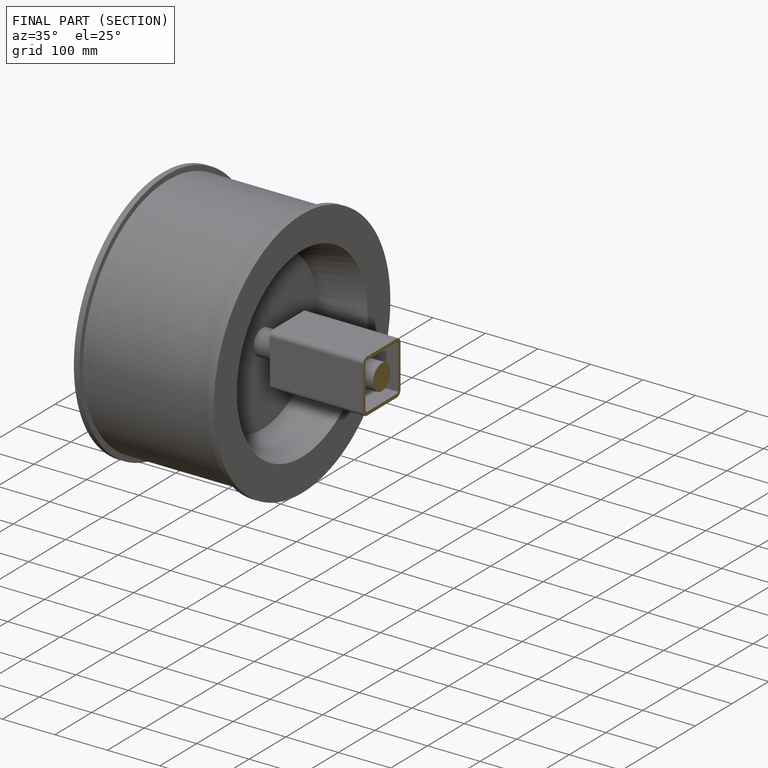
[diagram: finished part — half-section view (interior)]
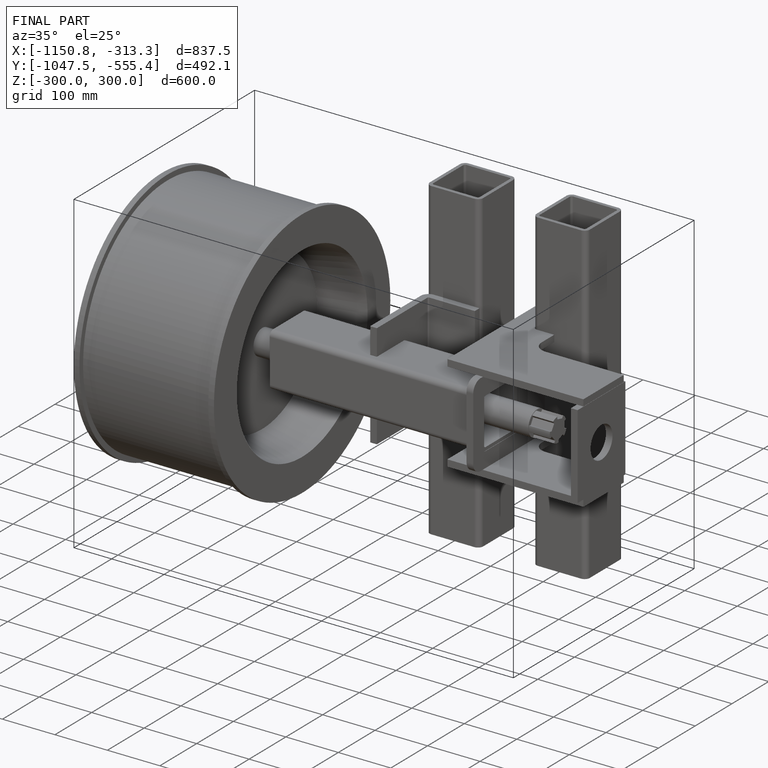
[diagram: finished part — iso view with bounding-box wireframe]
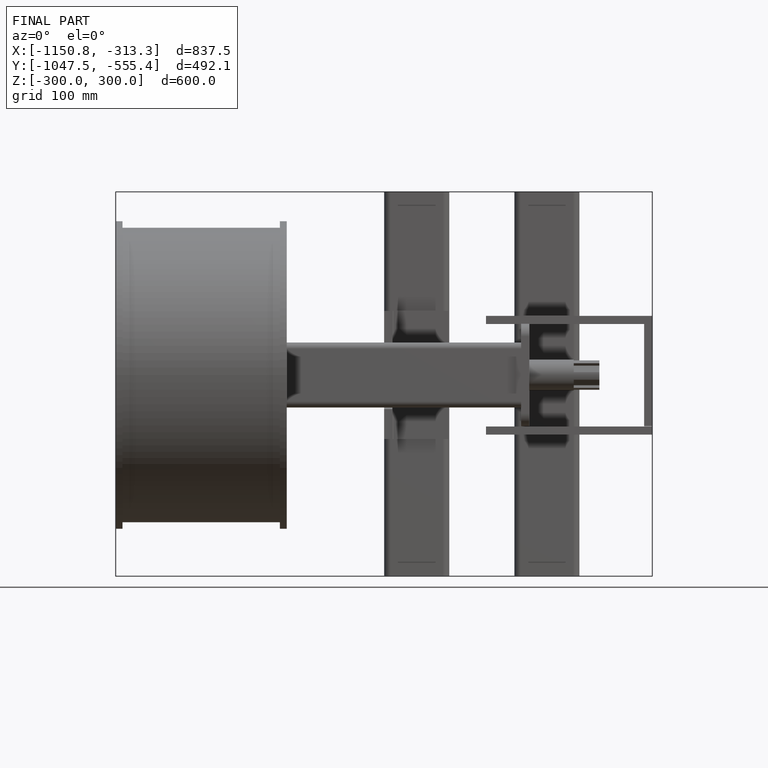
[diagram: finished part — front view with bounding-box wireframe]
